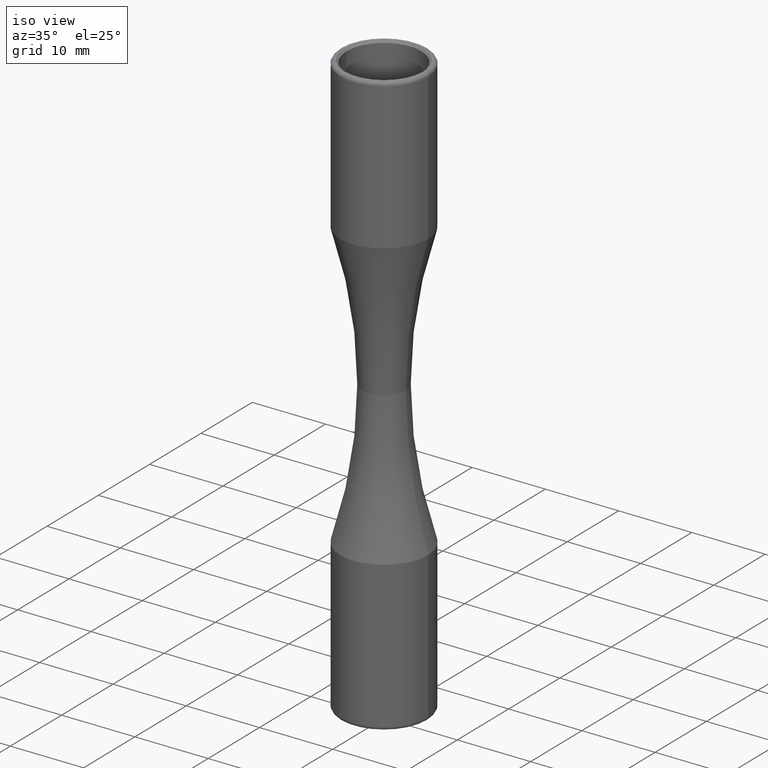
[diagram: clean part render]
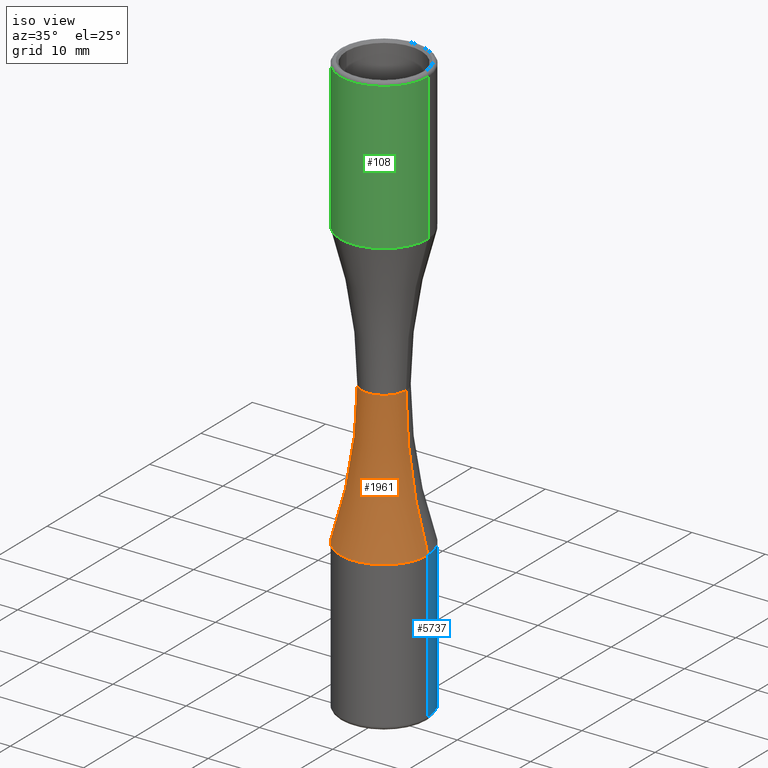
[diagram: same view with three faces highlighted in distinct colors, each labeled with its STEP entity id]
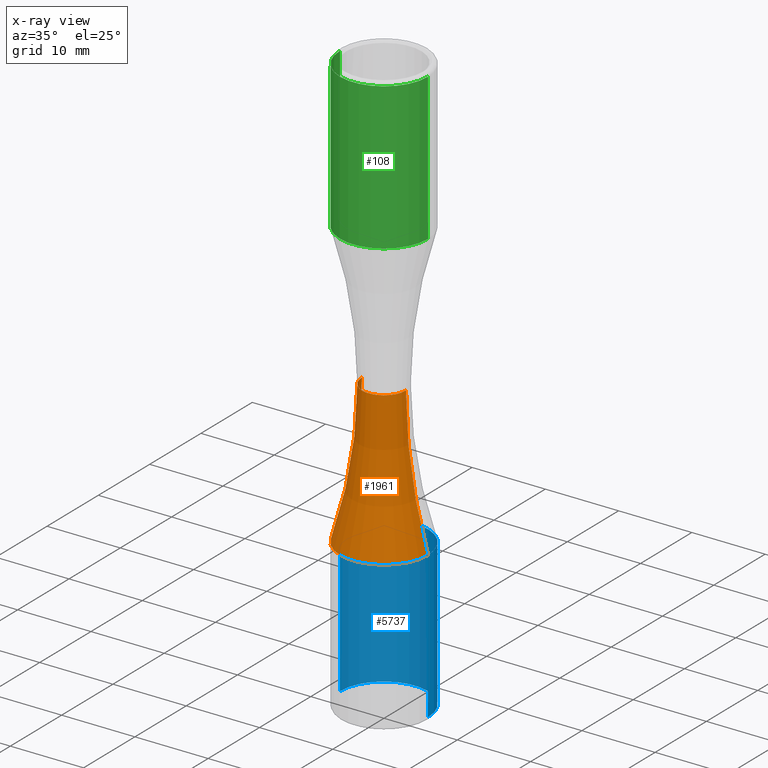
[diagram: x-ray of the same camera — body ghosted, the three highlighted faces saturated]
A machine part, iso view with three faces highlighted in distinct colors.
The next image is the same camera in x-ray (body ghosted, the three faces saturated) — at least one of them is partly hidden behind the body in this view.
Their STEP definitions:

[orange] entity #1961 — the highlighted toroidal blend (fillet) surface has major radius 67.9 mm and minor (blend) radius 64.9 mm.
#565 = DIRECTION ( 'NONE',  ( 0.000000000000000000, -1.000000000000000000, 0.000000000000000000 ) ) ;
#644 = CIRCLE ( 'NONE', #9687, 64.90000000000000568 ) ;
#1403 = AXIS2_PLACEMENT_3D ( 'NONE', #5058, #7883, #5901 ) ;
#1563 = VERTEX_POINT ( 'NONE', #12054 ) ;
#1582 = DIRECTION ( 'NONE',  ( 0.000000000000000000, 0.000000000000000000, -1.000000000000000000 ) ) ;
#1682 = CIRCLE ( 'NONE', #1403, 64.90000000000000568 ) ;
#1961 = ADVANCED_FACE ( 'NONE', ( #4410 ), #2596, .F. ) ;
#2596 = TOROIDAL_SURFACE ( 'NONE', #9019, 67.90000000000000568, 64.90000000000000568 ) ;
#3558 = VERTEX_POINT ( 'NONE', #3620 ) ;
#3620 = CARTESIAN_POINT ( 'NONE',  ( -5.999999999999995559, -4.336808689942017736E-15, -19.50384577461580093 ) ) ;
#3807 = CARTESIAN_POINT ( 'NONE',  ( 0.000000000000000000, 0.000000000000000000, 0.000000000000000000 ) ) ;
#3829 = EDGE_CURVE ( 'NONE', #10405, #9806, #4094, .T. ) ;
#4078 = AXIS2_PLACEMENT_3D ( 'NONE', #10128, #9950, #4170 ) ;
#4094 = CIRCLE ( 'NONE', #9903, 3.000000000000002665 ) ;
#4170 = DIRECTION ( 'NONE',  ( -1.000000000000000000, 0.000000000000000000, 0.000000000000000000 ) ) ;
#4241 = ORIENTED_EDGE ( 'NONE', *, *, #4914, .F. ) ;
#4410 = FACE_OUTER_BOUND ( 'NONE', #12840, .T. ) ;
#4914 = EDGE_CURVE ( 'NONE', #1563, #3558, #11550, .T. ) ;
#5058 = CARTESIAN_POINT ( 'NONE',  ( 67.90000000000000568, 8.315351766210528550E-15, 0.000000000000000000 ) ) ;
#5901 = DIRECTION ( 'NONE',  ( -1.000000000000000000, -1.224646799147352961E-16, 0.000000000000000000 ) ) ;
#6290 = CARTESIAN_POINT ( 'NONE',  ( -3.000000000000002665, 0.000000000000000000, 7.947957726466321528E-15 ) ) ;
#7079 = EDGE_CURVE ( 'NONE', #3558, #9806, #644, .T. ) ;
#7531 = CARTESIAN_POINT ( 'NONE',  ( 3.000000000000002665, 3.673940397442066771E-16, 7.947957726466321528E-15 ) ) ;
#7591 = DIRECTION ( 'NONE',  ( -1.000000000000000000, 0.000000000000000000, 0.000000000000000000 ) ) ;
#7633 = DIRECTION ( 'NONE',  ( -0.000000000000000000, -0.000000000000000000, -1.000000000000000000 ) ) ;
#7875 = DIRECTION ( 'NONE',  ( -1.000000000000000000, 0.000000000000000000, 0.000000000000000000 ) ) ;
#7883 = DIRECTION ( 'NONE',  ( -1.224646799147353207E-16, 1.000000000000000000, 0.000000000000000000 ) ) ;
#8512 = ORIENTED_EDGE ( 'NONE', *, *, #3829, .T. ) ;
#9019 = AXIS2_PLACEMENT_3D ( 'NONE', #3807, #10799, #7875 ) ;
#9687 = AXIS2_PLACEMENT_3D ( 'NONE', #10427, #565, #1582 ) ;
#9716 = CARTESIAN_POINT ( 'NONE',  ( 0.000000000000000000, 0.000000000000000000, 7.947957726466321528E-15 ) ) ;
#9806 = VERTEX_POINT ( 'NONE', #6290 ) ;
#9903 = AXIS2_PLACEMENT_3D ( 'NONE', #9716, #7633, #7591 ) ;
#9950 = DIRECTION ( 'NONE',  ( -0.000000000000000000, -0.000000000000000000, -1.000000000000000000 ) ) ;
#10128 = CARTESIAN_POINT ( 'NONE',  ( 0.000000000000000000, -4.336808689942017736E-15, -19.50384577461580093 ) ) ;
#10405 = VERTEX_POINT ( 'NONE', #7531 ) ;
#10427 = CARTESIAN_POINT ( 'NONE',  ( -67.90000000000000568, 0.000000000000000000, 0.000000000000000000 ) ) ;
#10446 = ORIENTED_EDGE ( 'NONE', *, *, #12755, .T. ) ;
#10799 = DIRECTION ( 'NONE',  ( -0.000000000000000000, -0.000000000000000000, -1.000000000000000000 ) ) ;
#11185 = ORIENTED_EDGE ( 'NONE', *, *, #7079, .F. ) ;
#11550 = CIRCLE ( 'NONE', #4078, 5.999999999999995559 ) ;
#12054 = CARTESIAN_POINT ( 'NONE',  ( 5.999999999999995559, -3.602020610453606058E-15, -19.50384577461580093 ) ) ;
#12755 = EDGE_CURVE ( 'NONE', #1563, #10405, #1682, .T. ) ;
#12840 = EDGE_LOOP ( 'NONE', ( #10446, #8512, #11185, #4241 ) ) ;

[blue] entity #5737 — the highlighted cylindrical surface (partial cylindrical patch) has radius 6 mm, axis along (-0, -0, -1).
#161 = LINE ( 'NONE', #345, #11056 ) ;
#269 = CARTESIAN_POINT ( 'NONE',  ( 0.000000000000000000, -4.336808689942017736E-15, -39.50384577461582580 ) ) ;
#345 = CARTESIAN_POINT ( 'NONE',  ( -6.000000000000000000, -4.336808689942017736E-15, -17.43945661757529564 ) ) ;
#650 = CARTESIAN_POINT ( 'NONE',  ( 6.000000000000000000, -3.602020610453606058E-15, -39.50384577461582580 ) ) ;
#724 = CARTESIAN_POINT ( 'NONE',  ( -6.000000000000000000, -4.336808689942017736E-15, -39.50384577461582580 ) ) ;
#1231 = DIRECTION ( 'NONE',  ( -1.000000000000000000, 0.000000000000000000, 0.000000000000000000 ) ) ;
#1383 = EDGE_CURVE ( 'NONE', #3558, #1563, #9714, .T. ) ;
#1393 = CARTESIAN_POINT ( 'NONE',  ( 6.000000000000000000, -3.602020610453606058E-15, -17.43945661757529564 ) ) ;
#1531 = ORIENTED_EDGE ( 'NONE', *, *, #8612, .T. ) ;
#1563 = VERTEX_POINT ( 'NONE', #12054 ) ;
#2354 = DIRECTION ( 'NONE',  ( -0.000000000000000000, -0.000000000000000000, -1.000000000000000000 ) ) ;
#3558 = VERTEX_POINT ( 'NONE', #3620 ) ;
#3620 = CARTESIAN_POINT ( 'NONE',  ( -5.999999999999995559, -4.336808689942017736E-15, -19.50384577461580093 ) ) ;
#3870 = VERTEX_POINT ( 'NONE', #650 ) ;
#5553 = DIRECTION ( 'NONE',  ( -0.000000000000000000, -0.000000000000000000, -1.000000000000000000 ) ) ;
#5737 = ADVANCED_FACE ( 'NONE', ( #10615 ), #6101, .T. ) ;
#5907 = ORIENTED_EDGE ( 'NONE', *, *, #10623, .T. ) ;
#6101 = CYLINDRICAL_SURFACE ( 'NONE', #8254, 6.000000000000000000 ) ;
#6134 = CARTESIAN_POINT ( 'NONE',  ( 0.000000000000000000, -4.336808689942017736E-15, -17.43945661757529564 ) ) ;
#6226 = DIRECTION ( 'NONE',  ( 0.000000000000000000, 0.000000000000000000, 1.000000000000000000 ) ) ;
#6430 = CARTESIAN_POINT ( 'NONE',  ( 0.000000000000000000, -4.336808689942017736E-15, -19.50384577461580093 ) ) ;
#6447 = AXIS2_PLACEMENT_3D ( 'NONE', #269, #6226, #10178 ) ;
#6520 = DIRECTION ( 'NONE',  ( -1.000000000000000000, 0.000000000000000000, 0.000000000000000000 ) ) ;
#6940 = EDGE_CURVE ( 'NONE', #3558, #10063, #161, .T. ) ;
#7173 = DIRECTION ( 'NONE',  ( -0.000000000000000000, -0.000000000000000000, -1.000000000000000000 ) ) ;
#8254 = AXIS2_PLACEMENT_3D ( 'NONE', #6134, #7173, #1231 ) ;
#8612 = EDGE_CURVE ( 'NONE', #1563, #3870, #10570, .T. ) ;
#8857 = AXIS2_PLACEMENT_3D ( 'NONE', #6430, #5553, #6520 ) ;
#9022 = EDGE_LOOP ( 'NONE', ( #9057, #1531, #5907, #11439 ) ) ;
#9057 = ORIENTED_EDGE ( 'NONE', *, *, #1383, .T. ) ;
#9714 = CIRCLE ( 'NONE', #8857, 5.999999999999995559 ) ;
#10063 = VERTEX_POINT ( 'NONE', #724 ) ;
#10178 = DIRECTION ( 'NONE',  ( -1.000000000000000000, 0.000000000000000000, 0.000000000000000000 ) ) ;
#10570 = LINE ( 'NONE', #1393, #11646 ) ;
#10615 = FACE_OUTER_BOUND ( 'NONE', #9022, .T. ) ;
#10623 = EDGE_CURVE ( 'NONE', #3870, #10063, #11302, .T. ) ;
#11056 = VECTOR ( 'NONE', #11213, 1000.000000000000000 ) ;
#11213 = DIRECTION ( 'NONE',  ( -0.000000000000000000, -0.000000000000000000, -1.000000000000000000 ) ) ;
#11302 = CIRCLE ( 'NONE', #6447, 6.000000000000000000 ) ;
#11439 = ORIENTED_EDGE ( 'NONE', *, *, #6940, .F. ) ;
#11646 = VECTOR ( 'NONE', #2354, 1000.000000000000000 ) ;
#12054 = CARTESIAN_POINT ( 'NONE',  ( 5.999999999999995559, -3.602020610453606058E-15, -19.50384577461580093 ) ) ;

[green] entity #108 — the highlighted cylindrical surface (partial cylindrical patch) has radius 6 mm, axis along (-0, -0, -1).
#108 = ADVANCED_FACE ( 'NONE', ( #4907 ), #8489, .T. ) ;
#116 = ORIENTED_EDGE ( 'NONE', *, *, #7775, .T. ) ;
#184 = VERTEX_POINT ( 'NONE', #12143 ) ;
#618 = CARTESIAN_POINT ( 'NONE',  ( 6.000000000000002665, -3.602020610453606058E-15, 39.50384577461582580 ) ) ;
#803 = VERTEX_POINT ( 'NONE', #2169 ) ;
#966 = CARTESIAN_POINT ( 'NONE',  ( -6.000000000000002665, -4.336808689942017736E-15, 39.50384577461582580 ) ) ;
#1005 = EDGE_CURVE ( 'NONE', #2363, #184, #8936, .T. ) ;
#1159 = CARTESIAN_POINT ( 'NONE',  ( 0.000000000000000000, -4.336808689942017736E-15, -17.43945661757529564 ) ) ;
#1287 = AXIS2_PLACEMENT_3D ( 'NONE', #1336, #10314, #3406 ) ;
#1336 = CARTESIAN_POINT ( 'NONE',  ( 0.000000000000000000, -4.336808689942017736E-15, 39.50384577461582580 ) ) ;
#1662 = VECTOR ( 'NONE', #4195, 1000.000000000000000 ) ;
#1768 = AXIS2_PLACEMENT_3D ( 'NONE', #8718, #2770, #4834 ) ;
#2169 = CARTESIAN_POINT ( 'NONE',  ( -5.999999999999992895, 0.000000000000000000, 19.50384577461582225 ) ) ;
#2219 = CARTESIAN_POINT ( 'NONE',  ( 6.000000000000002665, -3.602020610453606058E-15, -17.43945661757529564 ) ) ;
#2363 = VERTEX_POINT ( 'NONE', #618 ) ;
#2607 = EDGE_CURVE ( 'NONE', #184, #803, #11880, .T. ) ;
#2770 = DIRECTION ( 'NONE',  ( -0.000000000000000000, -0.000000000000000000, -1.000000000000000000 ) ) ;
#3180 = ORIENTED_EDGE ( 'NONE', *, *, #6977, .T. ) ;
#3357 = AXIS2_PLACEMENT_3D ( 'NONE', #1159, #7193, #9230 ) ;
#3406 = DIRECTION ( 'NONE',  ( 1.000000000000000000, 0.000000000000000000, 0.000000000000000000 ) ) ;
#4195 = DIRECTION ( 'NONE',  ( -0.000000000000000000, -0.000000000000000000, -1.000000000000000000 ) ) ;
#4253 = ORIENTED_EDGE ( 'NONE', *, *, #1005, .F. ) ;
#4834 = DIRECTION ( 'NONE',  ( -1.000000000000000000, 0.000000000000000000, 0.000000000000000000 ) ) ;
#4907 = FACE_OUTER_BOUND ( 'NONE', #9179, .T. ) ;
#5938 = ORIENTED_EDGE ( 'NONE', *, *, #2607, .F. ) ;
#6237 = VECTOR ( 'NONE', #12166, 1000.000000000000000 ) ;
#6671 = VERTEX_POINT ( 'NONE', #966 ) ;
#6858 = LINE ( 'NONE', #12117, #6237 ) ;
#6977 = EDGE_CURVE ( 'NONE', #6671, #803, #6858, .T. ) ;
#7193 = DIRECTION ( 'NONE',  ( -0.000000000000000000, -0.000000000000000000, -1.000000000000000000 ) ) ;
#7775 = EDGE_CURVE ( 'NONE', #2363, #6671, #12750, .T. ) ;
#8489 = CYLINDRICAL_SURFACE ( 'NONE', #3357, 6.000000000000002665 ) ;
#8718 = CARTESIAN_POINT ( 'NONE',  ( 0.000000000000000000, -4.336808689942017736E-15, 19.50384577461582225 ) ) ;
#8936 = LINE ( 'NONE', #2219, #1662 ) ;
#9179 = EDGE_LOOP ( 'NONE', ( #4253, #116, #3180, #5938 ) ) ;
#9230 = DIRECTION ( 'NONE',  ( -1.000000000000000000, 0.000000000000000000, 0.000000000000000000 ) ) ;
#10314 = DIRECTION ( 'NONE',  ( -0.000000000000000000, -0.000000000000000000, -1.000000000000000000 ) ) ;
#11880 = CIRCLE ( 'NONE', #1768, 6.000000000000000888 ) ;
#12117 = CARTESIAN_POINT ( 'NONE',  ( -6.000000000000002665, -4.336808689942017736E-15, -17.43945661757529564 ) ) ;
#12143 = CARTESIAN_POINT ( 'NONE',  ( 5.999999999999992895, 7.347880794884110861E-16, 19.50384577461582225 ) ) ;
#12166 = DIRECTION ( 'NONE',  ( -0.000000000000000000, -0.000000000000000000, -1.000000000000000000 ) ) ;
#12750 = CIRCLE ( 'NONE', #1287, 6.000000000000002665 ) ;